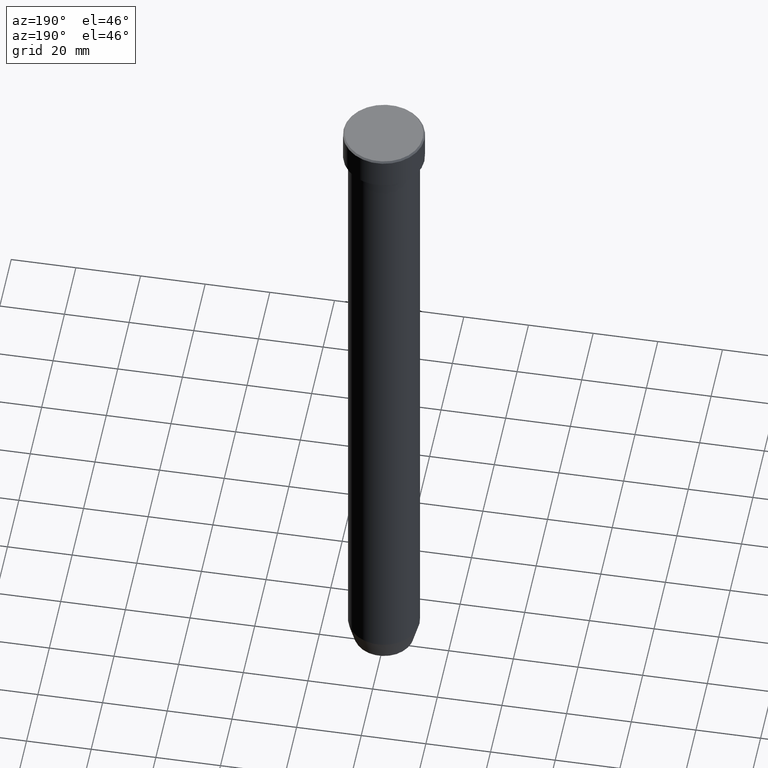
[diagram: clean part render]
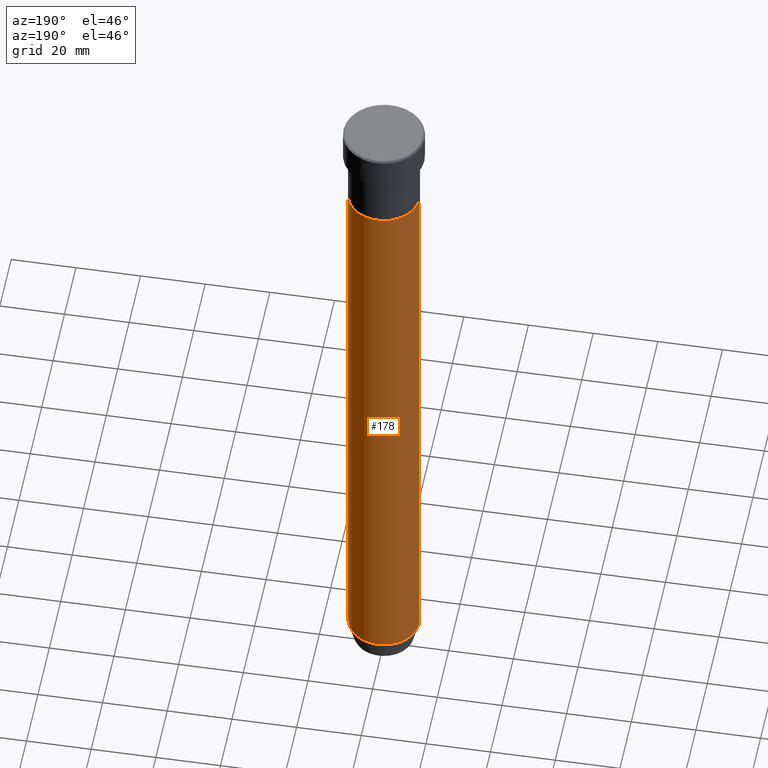
[diagram: same view with one face highlighted and labeled with its STEP entity id]
A machine part, auxiliary view. The second image highlights one B-rep face of the part: STEP entity #178.
In plain terms, the highlighted cylindrical surface (edge-blend (fillet) strip) has radius 11 mm, axis along (-0, -0, 1).
Its self-contained STEP definition (entity closure, byte-faithful):
#10 = FACE_OUTER_BOUND ( 'NONE', #376, .T. ) ;
#28 = VERTEX_POINT ( 'NONE', #121 ) ;
#53 = VECTOR ( 'NONE', #369, 1000.000000000000000 ) ;
#59 = DIRECTION ( 'NONE',  ( 1.000000000000000000, 0.000000000000000000, 0.000000000000000000 ) ) ;
#70 = VERTEX_POINT ( 'NONE', #155 ) ;
#99 = ORIENTED_EDGE ( 'NONE', *, *, #407, .T. ) ;
#119 = CARTESIAN_POINT ( 'NONE',  ( -11.00000000000000000, 1.347111479062088405E-15, -213.0000000000000284 ) ) ;
#121 = CARTESIAN_POINT ( 'NONE',  ( 11.00000000000000000, 0.000000000000000000, -27.00000000000000000 ) ) ;
#127 = ORIENTED_EDGE ( 'NONE', *, *, #309, .F. ) ;
#153 = CARTESIAN_POINT ( 'NONE',  ( 11.00000000000000000, 0.000000000000000000, -213.0000000000000284 ) ) ;
#155 = CARTESIAN_POINT ( 'NONE',  ( -11.00000000000000000, 1.347111479062088405E-15, -27.00000000000000000 ) ) ;
#159 = ORIENTED_EDGE ( 'NONE', *, *, #417, .F. ) ;
#165 = VERTEX_POINT ( 'NONE', #119 ) ;
#178 = ADVANCED_FACE ( 'NONE', ( #10 ), #473, .T. ) ;
#190 = DIRECTION ( 'NONE',  ( -0.000000000000000000, -0.000000000000000000, 1.000000000000000000 ) ) ;
#201 = DIRECTION ( 'NONE',  ( -0.000000000000000000, -0.000000000000000000, 1.000000000000000000 ) ) ;
#203 = AXIS2_PLACEMENT_3D ( 'NONE', #341, #201, #238 ) ;
#231 = CARTESIAN_POINT ( 'NONE',  ( 0.000000000000000000, 0.000000000000000000, 0.000000000000000000 ) ) ;
#238 = DIRECTION ( 'NONE',  ( 1.000000000000000000, 0.000000000000000000, 0.000000000000000000 ) ) ;
#248 = LINE ( 'NONE', #443, #540 ) ;
#265 = DIRECTION ( 'NONE',  ( 1.000000000000000000, 0.000000000000000000, 0.000000000000000000 ) ) ;
#279 = CARTESIAN_POINT ( 'NONE',  ( 0.000000000000000000, 0.000000000000000000, -213.0000000000000284 ) ) ;
#281 = CIRCLE ( 'NONE', #203, 11.00000000000000000 ) ;
#297 = VERTEX_POINT ( 'NONE', #153 ) ;
#309 = EDGE_CURVE ( 'NONE', #297, #28, #248, .T. ) ;
#328 = CARTESIAN_POINT ( 'NONE',  ( -11.00000000000000000, 1.347111479062088405E-15, 0.000000000000000000 ) ) ;
#329 = EDGE_CURVE ( 'NONE', #297, #165, #445, .T. ) ;
#333 = DIRECTION ( 'NONE',  ( -0.000000000000000000, -0.000000000000000000, 1.000000000000000000 ) ) ;
#341 = CARTESIAN_POINT ( 'NONE',  ( 0.000000000000000000, 0.000000000000000000, -27.00000000000000000 ) ) ;
#369 = DIRECTION ( 'NONE',  ( -0.000000000000000000, -0.000000000000000000, 1.000000000000000000 ) ) ;
#376 = EDGE_LOOP ( 'NONE', ( #485, #99, #159, #127 ) ) ;
#381 = AXIS2_PLACEMENT_3D ( 'NONE', #231, #333, #59 ) ;
#407 = EDGE_CURVE ( 'NONE', #165, #70, #428, .T. ) ;
#417 = EDGE_CURVE ( 'NONE', #28, #70, #281, .T. ) ;
#428 = LINE ( 'NONE', #328, #53 ) ;
#443 = CARTESIAN_POINT ( 'NONE',  ( 11.00000000000000000, 0.000000000000000000, 0.000000000000000000 ) ) ;
#445 = CIRCLE ( 'NONE', #488, 11.00000000000000000 ) ;
#472 = DIRECTION ( 'NONE',  ( -0.000000000000000000, -0.000000000000000000, 1.000000000000000000 ) ) ;
#473 = CYLINDRICAL_SURFACE ( 'NONE', #381, 11.00000000000000000 ) ;
#485 = ORIENTED_EDGE ( 'NONE', *, *, #329, .T. ) ;
#488 = AXIS2_PLACEMENT_3D ( 'NONE', #279, #472, #265 ) ;
#540 = VECTOR ( 'NONE', #190, 1000.000000000000000 ) ;